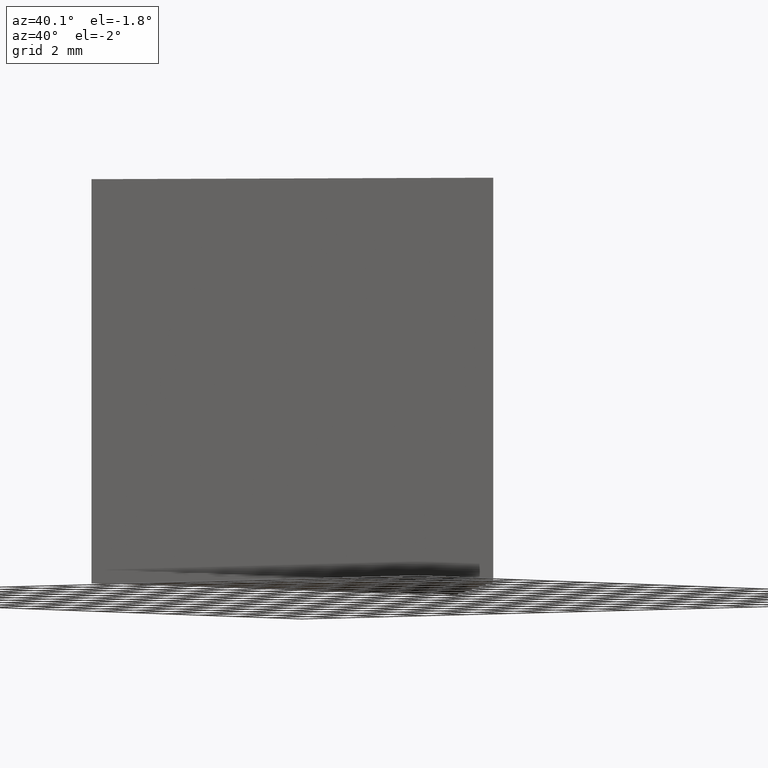
[diagram: clean part render]
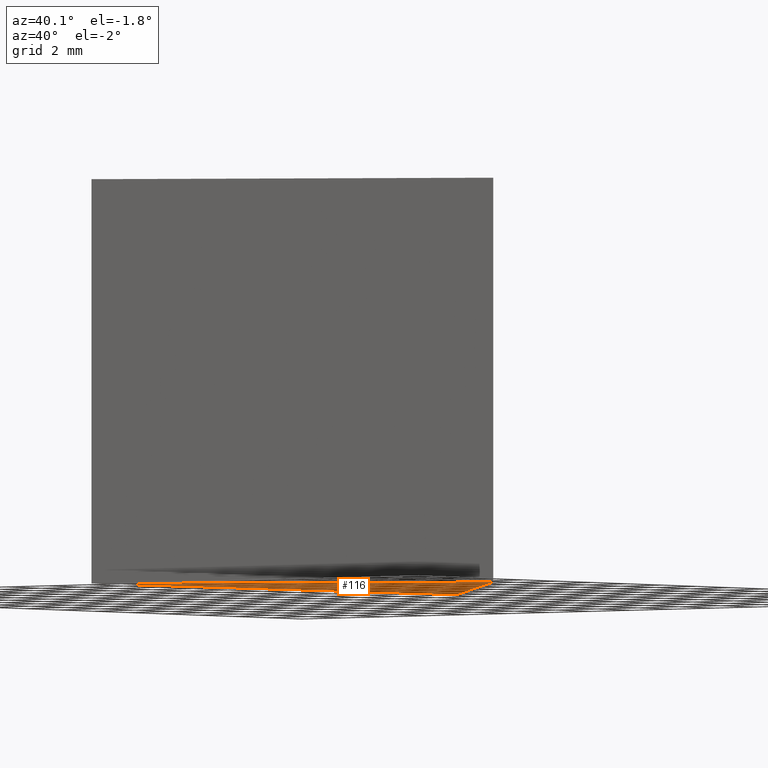
[diagram: same view with one face highlighted and labeled with its STEP entity id]
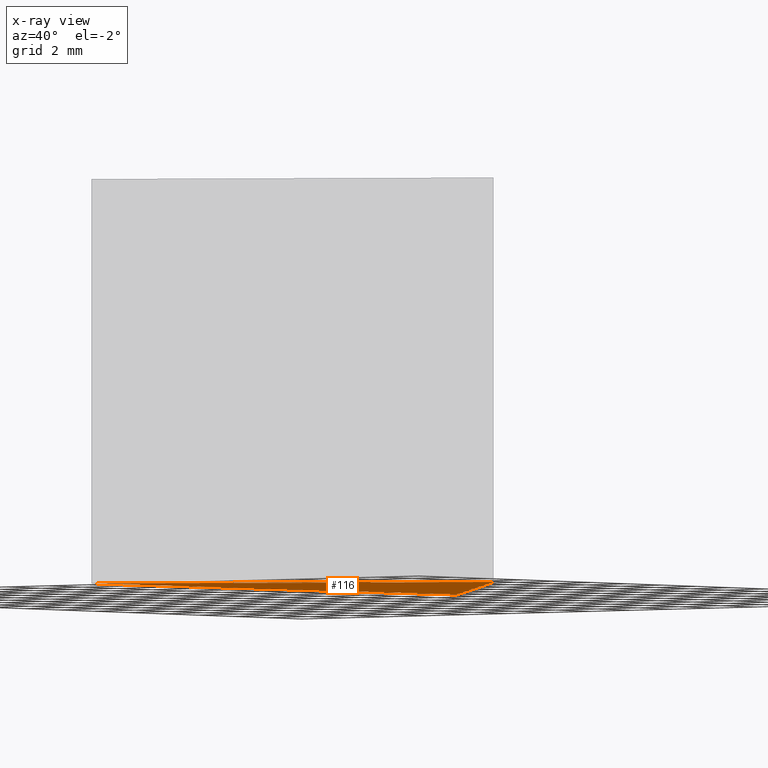
[diagram: x-ray of the same camera — body ghosted, the highlighted face saturated]
A machine part, auxiliary view. The second image highlights one B-rep face of the part: STEP entity #116.
The next image is the same camera in x-ray: the body ghosted, the highlighted face saturated — about 0% of this face is hidden behind the body in this view.
In plain terms, the highlighted planar face has unit normal (0, 0, -1).
Its self-contained STEP definition (entity closure, byte-faithful):
#4 = CARTESIAN_POINT ( 'NONE',  ( 13.19977079032643300, 9.118493995075059600, 0.0000000000000000000 ) ) ;
#6 = EDGE_CURVE ( 'NONE', #57, #135, #109, .T. ) ;
#7 = EDGE_LOOP ( 'NONE', ( #74, #94, #143 ) ) ;
#14 = DIRECTION ( 'NONE',  ( 0.0000000000000000000, 0.0000000000000000000, -1.000000000000000000 ) ) ;
#17 = VECTOR ( 'NONE', #84, 1000.000000000000000 ) ;
#18 = VECTOR ( 'NONE', #30, 1000.000000000000100 ) ;
#30 = DIRECTION ( 'NONE',  ( -0.09777970958415378700, -0.9952080829623715100, -0.0000000000000000000 ) ) ;
#47 = VERTEX_POINT ( 'NONE', #66 ) ;
#57 = VERTEX_POINT ( 'NONE', #151 ) ;
#66 = CARTESIAN_POINT ( 'NONE',  ( 13.19977079032643300, 9.118493995075059600, 0.0000000000000000000 ) ) ;
#67 = DIRECTION ( 'NONE',  ( 0.8342399877260263700, 0.5514015260034012000, -0.0000000000000000000 ) ) ;
#73 = EDGE_CURVE ( 'NONE', #47, #57, #122, .T. ) ;
#74 = ORIENTED_EDGE ( 'NONE', *, *, #97, .F. ) ;
#83 = DIRECTION ( 'NONE',  ( -1.000000000000000000, 0.0000000000000000000, 0.0000000000000000000 ) ) ;
#84 = DIRECTION ( 'NONE',  ( -0.7109728236074627200, 0.7032194850056643400, 0.0000000000000000000 ) ) ;
#90 = VECTOR ( 'NONE', #67, 1000.000000000000000 ) ;
#94 = ORIENTED_EDGE ( 'NONE', *, *, #6, .F. ) ;
#95 = CARTESIAN_POINT ( 'NONE',  ( 13.19977079032643300, 9.118493995075059600, 0.0000000000000000000 ) ) ;
#97 = EDGE_CURVE ( 'NONE', #135, #47, #152, .T. ) ;
#102 = AXIS2_PLACEMENT_3D ( 'NONE', #107, #14, #83 ) ;
#107 = CARTESIAN_POINT ( 'NONE',  ( 0.0000000000000000000, 0.0000000000000000000, 0.0000000000000000000 ) ) ;
#109 = LINE ( 'NONE', #125, #18 ) ;
#116 = ADVANCED_FACE ( 'NONE', ( #145 ), #120, .T. ) ;
#120 = PLANE ( 'NONE',  #102 ) ;
#122 = LINE ( 'NONE', #95, #17 ) ;
#125 = CARTESIAN_POINT ( 'NONE',  ( 0.6861709744360347000, 0.8474711050240408800, 0.0000000000000000000 ) ) ;
#135 = VERTEX_POINT ( 'NONE', #157 ) ;
#143 = ORIENTED_EDGE ( 'NONE', *, *, #73, .F. ) ;
#145 = FACE_OUTER_BOUND ( 'NONE', #7, .T. ) ;
#151 = CARTESIAN_POINT ( 'NONE',  ( 2.535178436214490500, 19.66678627016002400, 0.0000000000000000000 ) ) ;
#152 = LINE ( 'NONE', #4, #90 ) ;
#157 = CARTESIAN_POINT ( 'NONE',  ( 0.6861709744360347000, 0.8474711050240408800, 0.0000000000000000000 ) ) ;